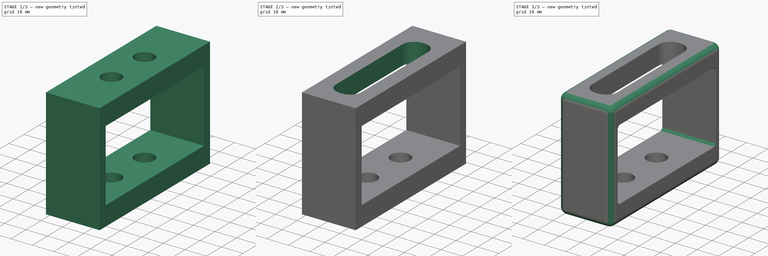
[diagram: build sequence overview — one tinted view per stage of 3, left to right]
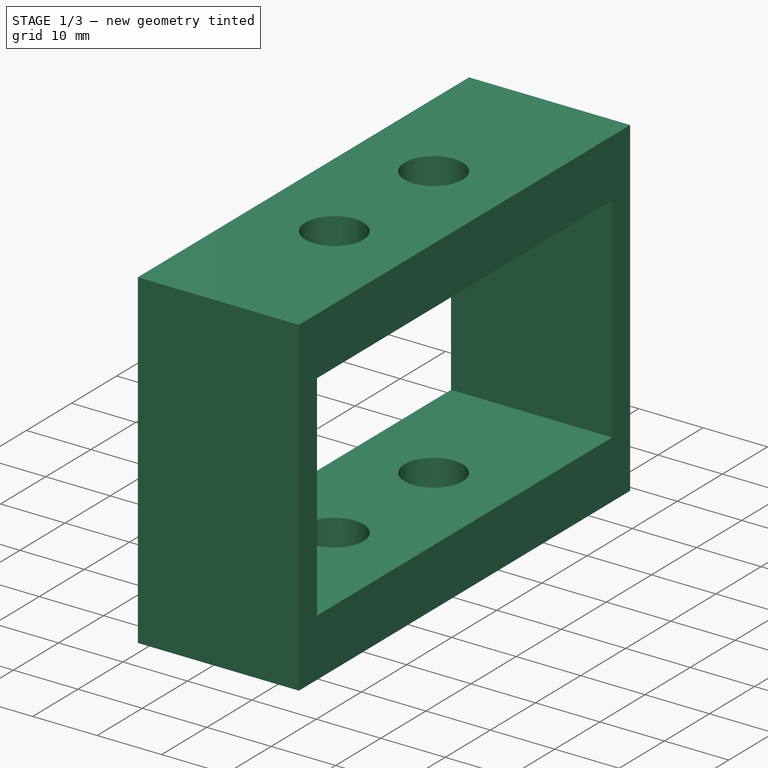
[diagram: stage 1 of 3 — iso view after this stage's code; geometry added in this stage tinted green]
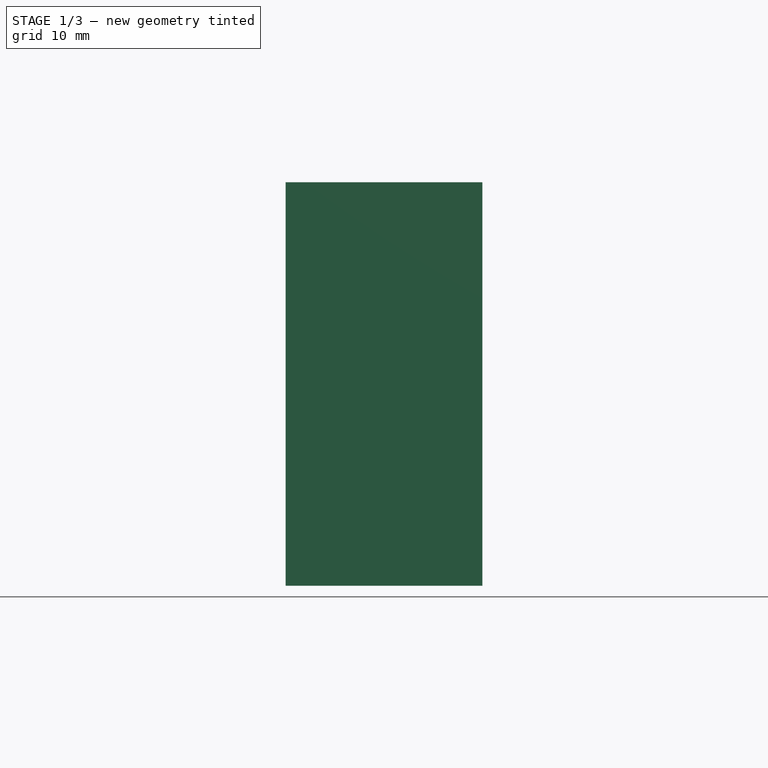
[diagram: stage 1 of 3 — front view after this stage's code; geometry added in this stage tinted green]
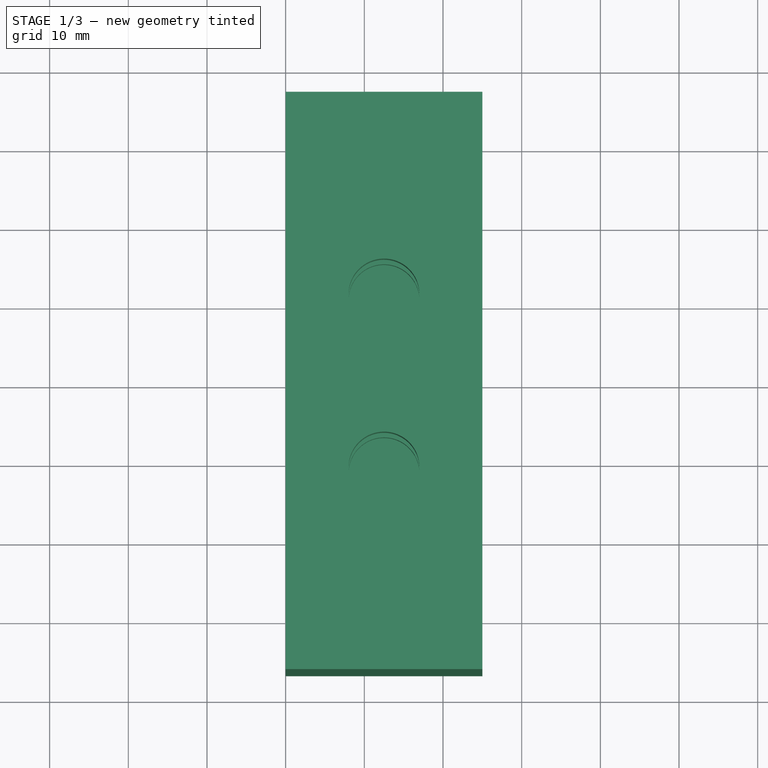
[diagram: stage 1 of 3 — top view after this stage's code; geometry added in this stage tinted green]
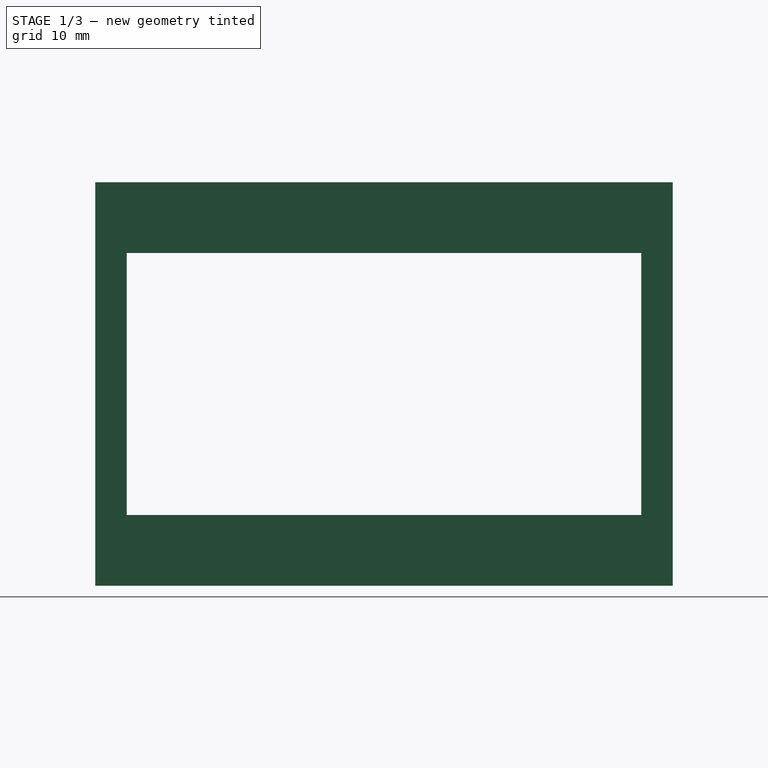
[diagram: stage 1 of 3 — right view after this stage's code; geometry added in this stage tinted green]
FCSTD DOCUMENT  (FreeCAD 1.0R39109 (Git))
Label: RaspberryMount
License: All rights reserved
LicenseURL: https://en.wikipedia.org/wiki/All_rights_reserved
objects: PartDesign::Pocket×3, Sketcher::SketchObject×2, PartDesign::Fillet×2, PartDesign::Pad×1, PartDesign::Plane×1, PartDesign::Chamfer×1, PartDesign::Body×1
note: 27 computed .brp shape members not serialized (recipe doc carries the construction recipe); baked Part::Feature solids carry a one-line shape summary decoded from their .brp

FEATURE [Sketcher::SketchObject] Sketch
  ArcFitTolerance = 1e-06
  AttachmentSupport = -> [YZ_Plane]
  FullyConstrained = true
  MakeInternals = false
  MapMode = 5
  Placement = pos=(0,0,0) rot=(0.57735,0.57735,0.57735;2.0944rad)
  sketch-geometry (10):
    g0: LineSegment StartX=-32.7 StartY=-16.65 StartZ=0 EndX=32.7 EndY=-16.65 EndZ=0
    g1: LineSegment StartX=32.7 StartY=-16.65 StartZ=0 EndX=32.7 EndY=16.65 EndZ=0
    g2: LineSegment StartX=32.7 StartY=16.65 StartZ=0 EndX=-32.7 EndY=16.65 EndZ=0
    g3: LineSegment StartX=-32.7 StartY=16.65 StartZ=0 EndX=-32.7 EndY=-16.65 EndZ=0
    g4: GeomPoint [constr] X=0 Y=0 Z=0
    g5: LineSegment StartX=-36.7 StartY=-25.65 StartZ=0 EndX=36.7 EndY=-25.65 EndZ=0
    g6: LineSegment StartX=36.7 StartY=-25.65 StartZ=0 EndX=36.7 EndY=25.65 EndZ=0
    g7: LineSegment StartX=36.7 StartY=25.65 StartZ=0 EndX=-36.7 EndY=25.65 EndZ=0
    g8: LineSegment StartX=-36.7 StartY=25.65 StartZ=0 EndX=-36.7 EndY=-25.65 EndZ=0
    g9: GeomPoint [constr] X=0 Y=0 Z=0
  constraints (24):
    c: Coincident(g0,g1)
    c: Coincident(g1,g2)
    c: Coincident(g2,g3)
    c: Coincident(g3,g0)
    c: Horizontal(g0)
    c: Horizontal(g2)
    c: Vertical(g1)
    c: Vertical(g3)
    c: Symmetric(g2,g0,g4)
    c: Distance(g1,g3) = 65.4
    c: Distance(g0,g2) = 33.3
    c: Coincident(g4,g-1)
    c: Coincident(g5,g6)
    c: Coincident(g6,g7)
    c: Coincident(g7,g8)
    c: Coincident(g8,g5)
    c: Horizontal(g5)
    c: Horizontal(g7)
    c: Vertical(g6)
    c: Vertical(g8)
    c: Symmetric(g7,g5,g9)
    c: Coincident(g9,g4)
    c: Distance(g5,g0) = 9
    c: Distance(g3,g8) = 4
FEATURE [PartDesign::Pad] Pad
  Direction = (1,0,0)
  Length = 25
  Length2 = 10
  Placement = pos=(0,0,0) rot=(1,1,1;2.0944rad)
  Profile = -> Sketch [Edge7,Edge6,Edge5,Edge8,Edge4,Edge3,Edge1,Edge2]
  ReferenceAxis = -> Sketch [N_Axis]
  Refine = true
  Suppressed = false
  Type = 0
FEATURE [PartDesign::Plane] DatumPlane
  AttachmentSupport = -> [Pad]
  Length = 85.5161
  MapMode = 5
  Placement = pos=(-2.8e-15,8.5e-15,25.65) rot=(0,0,-1;1.5708rad)
  ResizeMode = 0
  Width = 62.1161
FEATURE [Sketcher::SketchObject] Sketch001
  ArcFitTolerance = 1e-06
  AttachmentSupport = -> [Pad]
  FullyConstrained = false
  MakeInternals = false
  MapMode = 5
  Placement = pos=(-2.8e-15,8.5e-15,25.65) rot=(0,0,-1;1.5708rad)
  sketch-geometry (11):
    g0: LineSegment [constr] StartX=-44.4109 StartY=12.5 StartZ=0 EndX=46.9285 EndY=12.5 EndZ=0
    g1: Circle CenterX=-11 CenterY=12.5 CenterZ=0 NormalX=0 NormalY=0 NormalZ=1 AngleXU=0 Radius=4.5
    g2: Circle CenterX=11 CenterY=12.5 CenterZ=0 NormalX=0 NormalY=0 NormalZ=1 AngleXU=0 Radius=4.5
    g3: Circle CenterX=-11 CenterY=12.5 CenterZ=0 NormalX=0 NormalY=0 NormalZ=1 AngleXU=0 Radius=2.7
    g4: Circle CenterX=11 CenterY=12.5 CenterZ=0 NormalX=0 NormalY=0 NormalZ=1 AngleXU=0 Radius=0
    g5: Circle CenterX=11 CenterY=12.5 CenterZ=0 NormalX=0 NormalY=0 NormalZ=1 AngleXU=0 Radius=2.7
    g6: LineSegment StartX=-26.2412 StartY=6.5 StartZ=0 EndX=28.7588 EndY=6.5 EndZ=0
    g7: LineSegment StartX=28.7588 StartY=6.5 StartZ=0 EndX=28.7588 EndY=18.5 EndZ=0
    g8: LineSegment StartX=28.7588 StartY=18.5 StartZ=0 EndX=-26.2412 EndY=18.5 EndZ=0
    g9: LineSegment StartX=-26.2412 StartY=18.5 StartZ=0 EndX=-26.2412 EndY=6.5 EndZ=0
    g10: GeomPoint [constr] X=1.25878 Y=12.5 Z=0
  constraints (26):
    c: Horizontal(g0)
    c: Distance(g-1,g0) = 12.5
    c: Diameter(g1) = 9
    c: PointOnObject(g1,g0)
    c: Diameter(g2) = 9
    c: PointOnObject(g2,g0)
    c: Distance(g1,g-2) = 11
    c: Distance(g2,g-2) = 11
    c: Diameter(g3) = 5.4
    c: Coincident(g3,g1)
    c: Coincident(g4,g2)
    c: Tangent(g4,g0)
    c: Diameter(g5) = 5.4
    c: Coincident(g5,g2)
    c: Coincident(g6,g7)
    c: Coincident(g7,g8)
    c: Coincident(g8,g9)
    c: Coincident(g9,g6)
    c: Horizontal(g6)
    c: Horizontal(g8)
    c: Vertical(g7)
    c: Vertical(g9)
    c: Symmetric(g8,g6,g10)
    c: Distance(g7,g9) = 55
    c: Distance(g6,g8) = 12
    c: Symmetric(g0,g0,g10)
FEATURE [PartDesign::Pocket] Pocket
  BaseFeature = -> Pad
  Direction = (0,0,-1)
  Length = 47
  Length2 = 5
  Placement = pos=(0,0,0) rot=(1,1,1;2.0944rad)
  Profile = -> Sketch001 [Edge1,Edge2]
  ReferenceAxis = -> Sketch001 [N_Axis]
  Refine = true
  Suppressed = false
  Type = 0
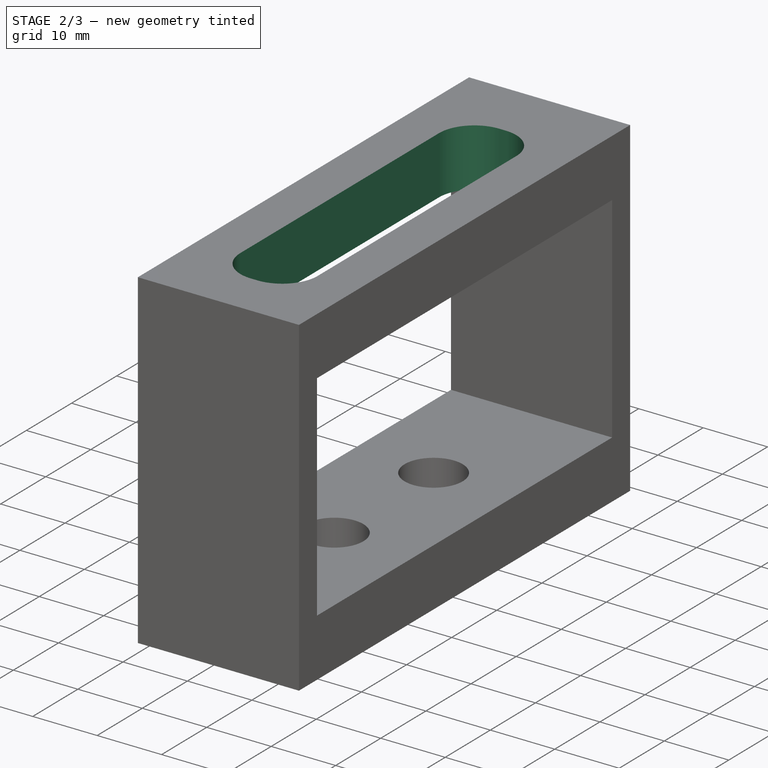
[diagram: stage 2 of 3 — iso view after this stage's code; geometry added in this stage tinted green]
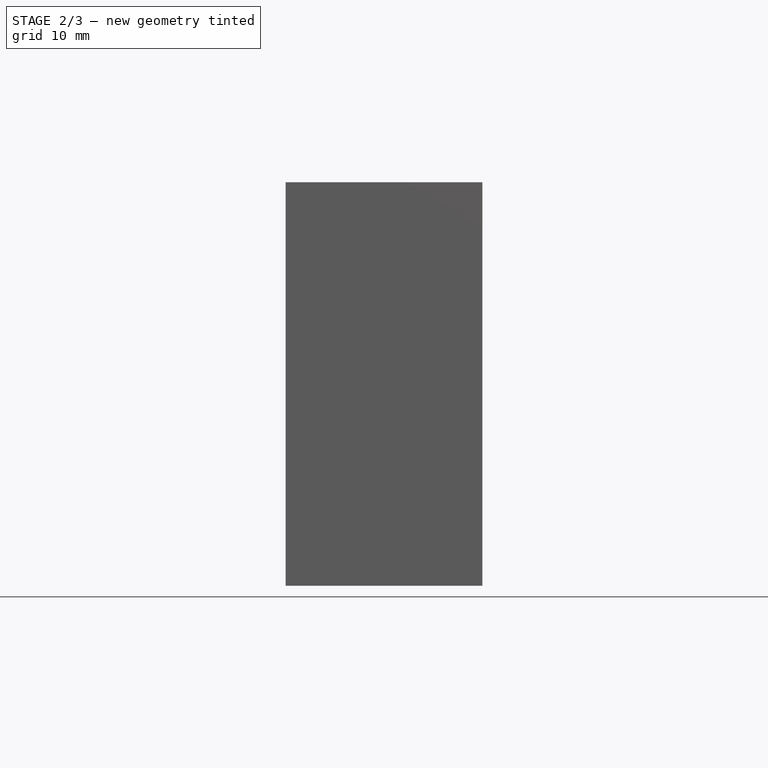
[diagram: stage 2 of 3 — front view after this stage's code; geometry added in this stage tinted green]
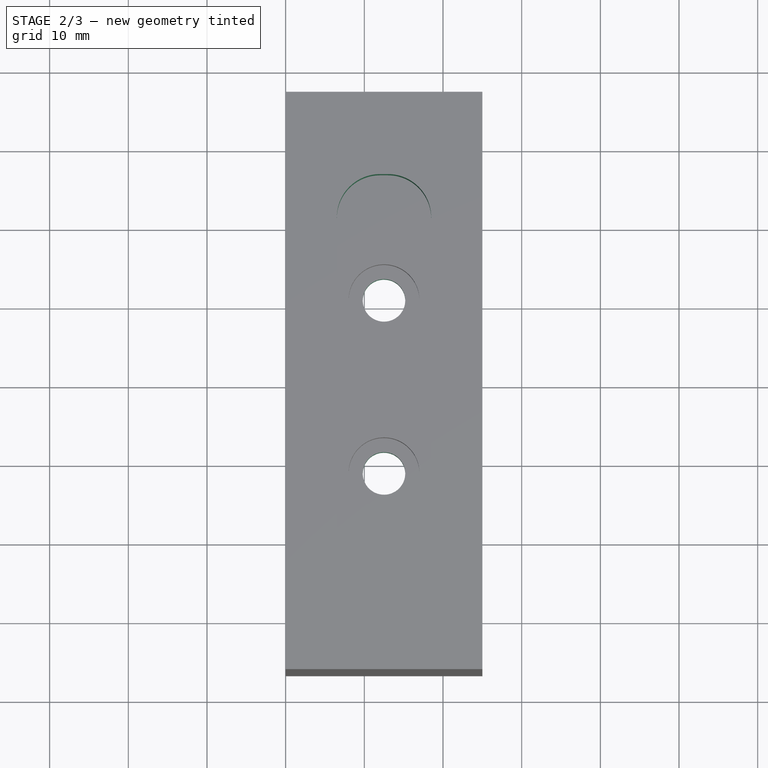
[diagram: stage 2 of 3 — top view after this stage's code; geometry added in this stage tinted green]
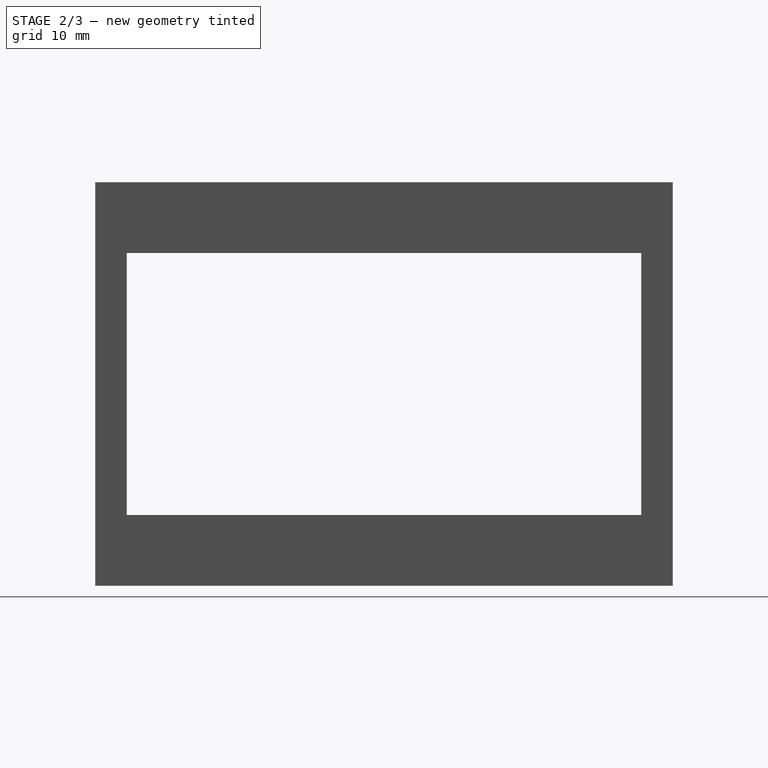
[diagram: stage 2 of 3 — right view after this stage's code; geometry added in this stage tinted green]
FEATURE [PartDesign::Pocket] Pocket001
  BaseFeature = -> Pocket
  Direction = (0,0,-1)
  Length = 9
  Length2 = 5
  Placement = pos=(0,0,0) rot=(1,1,1;2.0944rad)
  Profile = -> Sketch001 [Edge8,Edge9,Edge6,Edge7]
  ReferenceAxis = -> Sketch001 [N_Axis]
  Refine = true
  Suppressed = false
  Type = 0
FEATURE [PartDesign::Pocket] Pocket002
  BaseFeature = -> Pocket001
  Direction = (0,0,-1)
  Length = 52
  Length2 = 5
  Placement = pos=(0,0,0) rot=(1,1,1;2.0944rad)
  Profile = -> Sketch001 [Edge5,Edge3]
  ReferenceAxis = -> Sketch001 [N_Axis]
  Refine = true
  Suppressed = false
  Type = 0
FEATURE [PartDesign::Fillet] Fillet
  Base = -> Pocket002 [Edge26,Edge30,Edge28,Edge25]
  BaseFeature = -> Pocket002
  Placement = pos=(0,0,0) rot=(1,1,1;2.0944rad)
  Radius = 5.5
  Refine = true
  SupportTransform = false
  Suppressed = false
  UseAllEdges = false
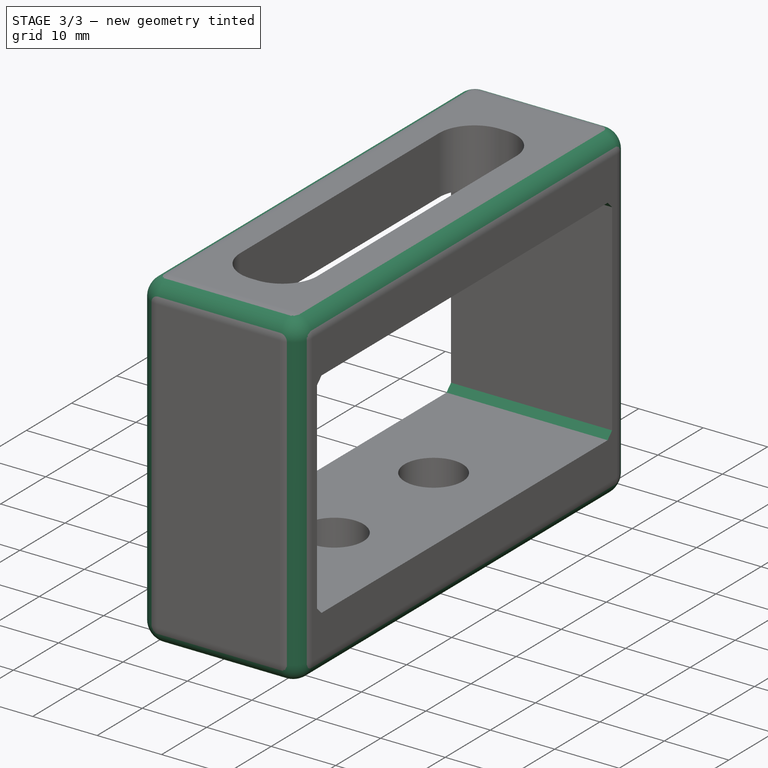
[diagram: stage 3 of 3 — iso view after this stage's code; geometry added in this stage tinted green]
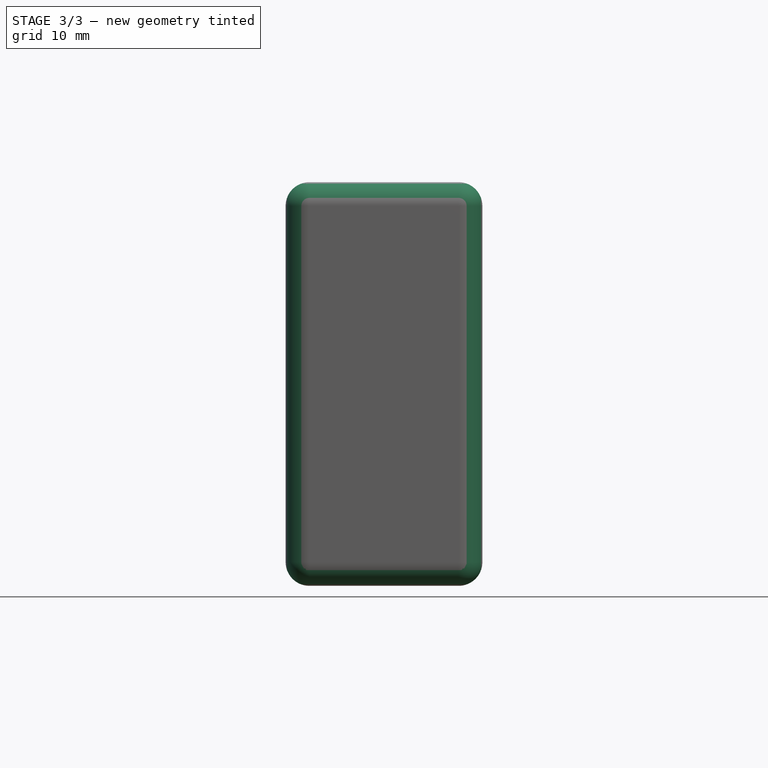
[diagram: stage 3 of 3 — front view after this stage's code; geometry added in this stage tinted green]
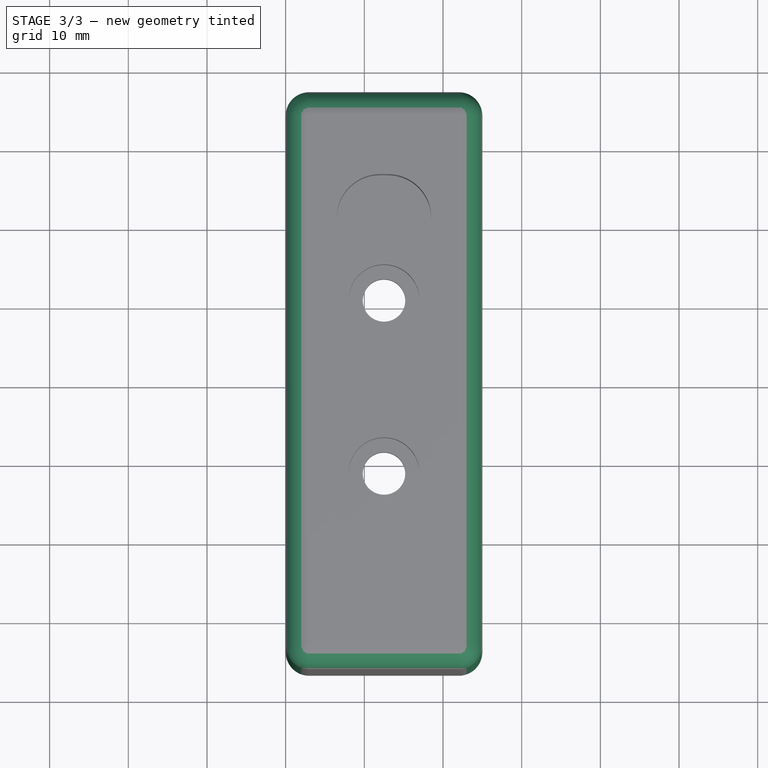
[diagram: stage 3 of 3 — top view after this stage's code; geometry added in this stage tinted green]
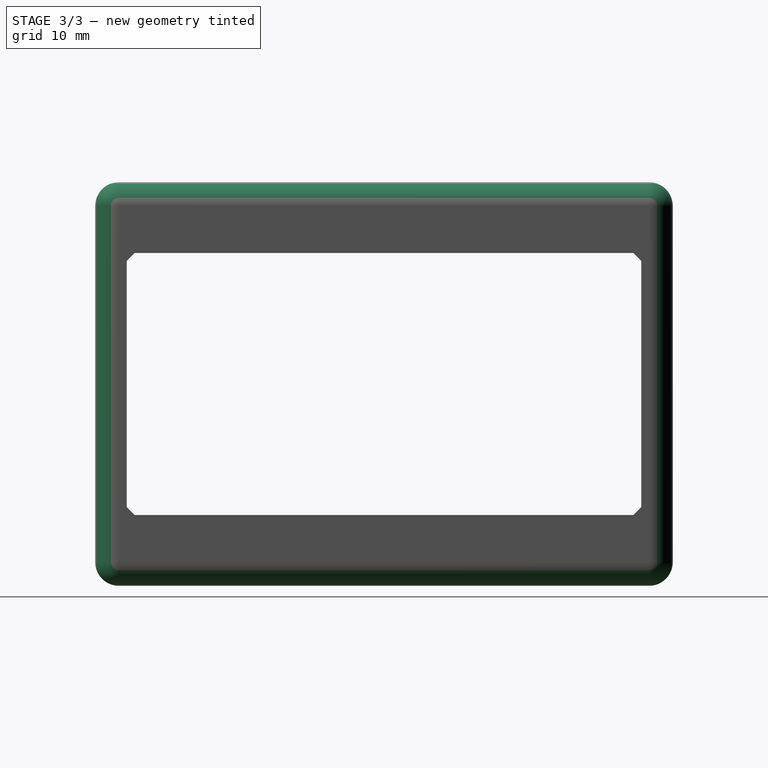
[diagram: stage 3 of 3 — right view after this stage's code; geometry added in this stage tinted green]
FEATURE [PartDesign::Fillet] Fillet001
  Base = -> Fillet [Edge11,Edge9,Edge10,Edge12,Edge38,Edge32,Edge44,Edge33,Edge30,Edge39,Edge31,Edge29]
  BaseFeature = -> Fillet
  Placement = pos=(0,0,0) rot=(1,1,1;2.0944rad)
  Radius = 3
  Refine = true
  SupportTransform = false
  Suppressed = false
  UseAllEdges = false
FEATURE [PartDesign::Chamfer] Chamfer
  Angle = 45
  Base = -> Fillet001 [Edge70,Edge76,Edge77,Edge69]
  BaseFeature = -> Fillet001
  ChamferType = 0
  FlipDirection = false
  Placement = pos=(0,0,0) rot=(1,1,1;2.0944rad)
  Refine = true
  Size = 1
  Size2 = 1
  SupportTransform = false
  Suppressed = false
  UseAllEdges = false
FEATURE [PartDesign::Body] Body  label="RaspberryMount"
  AllowCompound = false
  Group = -> [Sketch,Pad,DatumPlane,Sketch001,Pocket,Pocket001,Pocket002,Fillet,Fillet001,Chamfer]
  Origin = -> Origin
  Tip = -> Chamfer
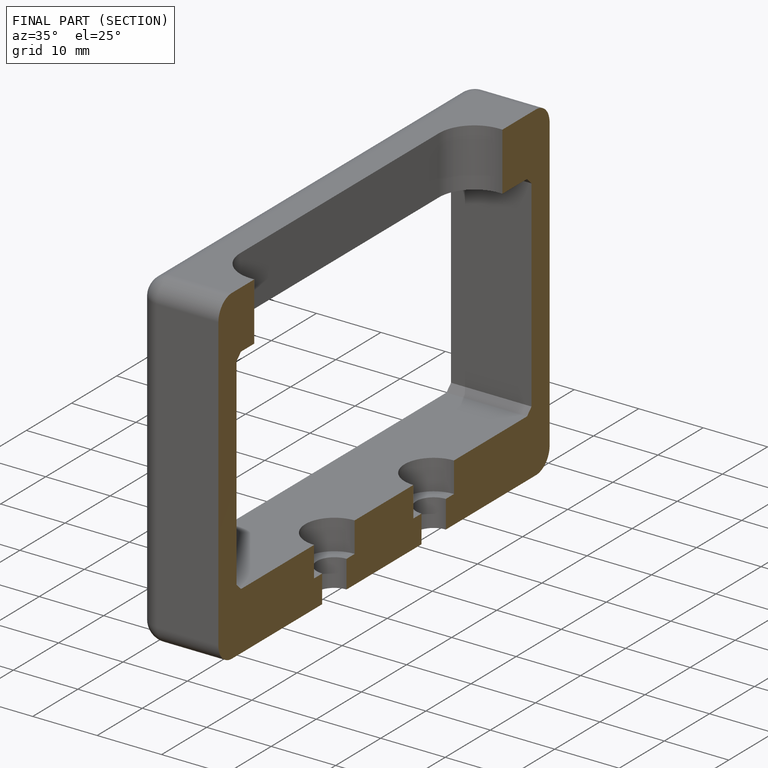
[diagram: finished part — half-section view (interior)]
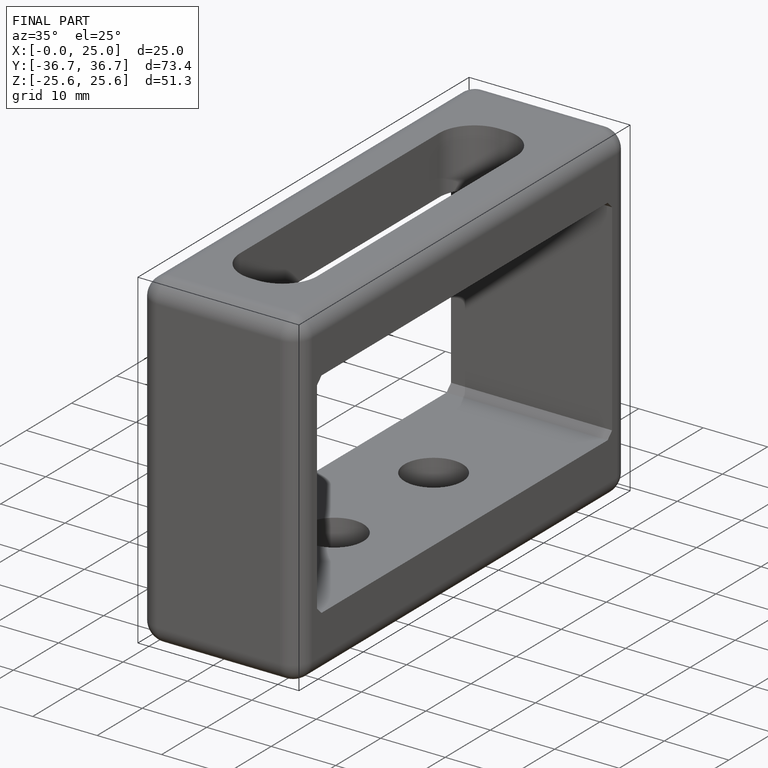
[diagram: finished part — iso view with bounding-box wireframe]
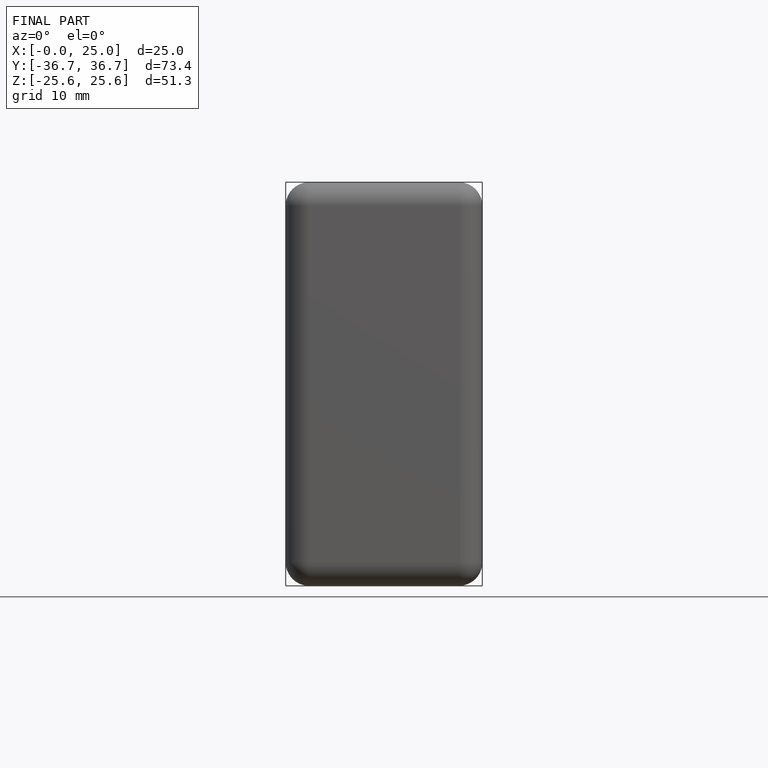
[diagram: finished part — front view with bounding-box wireframe]
